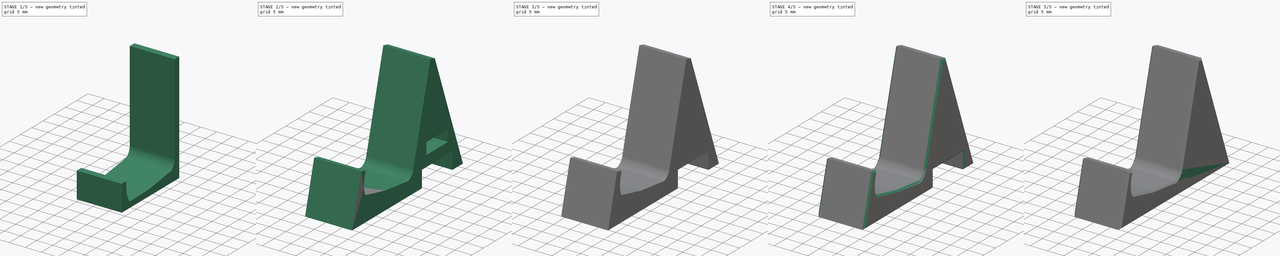
[diagram: build sequence overview — one tinted view per stage of 5, left to right]
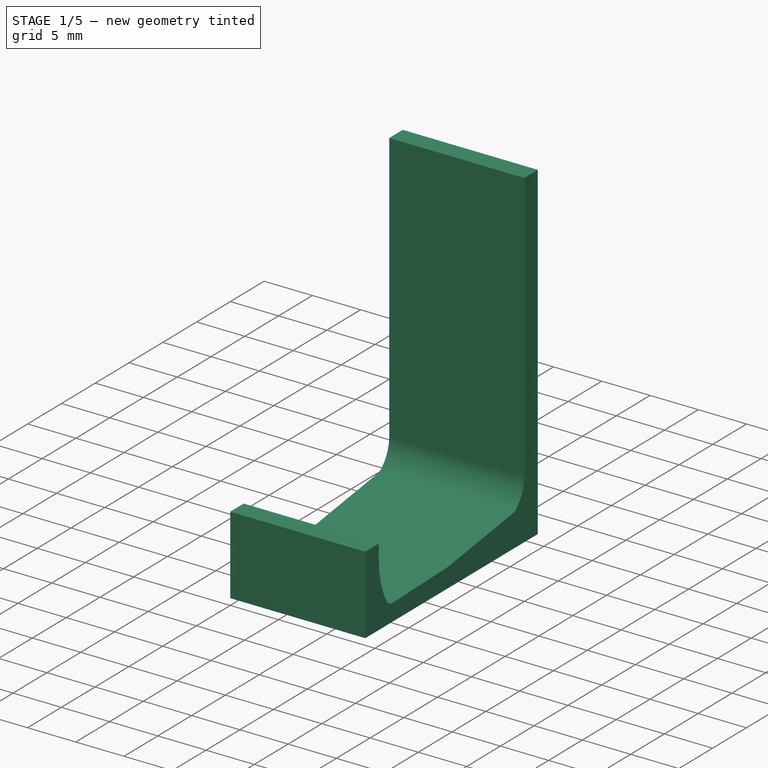
[diagram: stage 1 of 5 — iso view after this stage's code; geometry added in this stage tinted green]
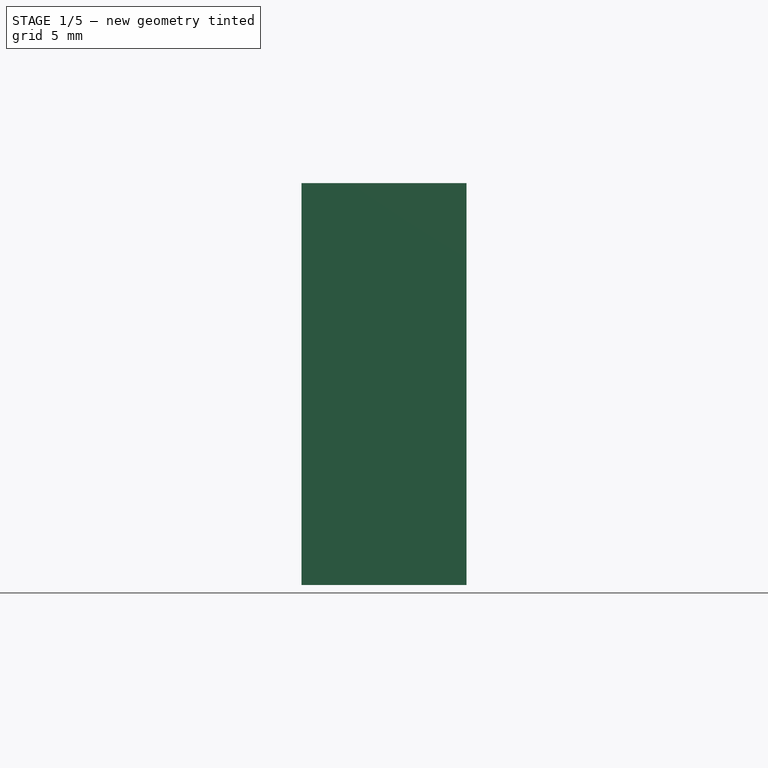
[diagram: stage 1 of 5 — front view after this stage's code; geometry added in this stage tinted green]
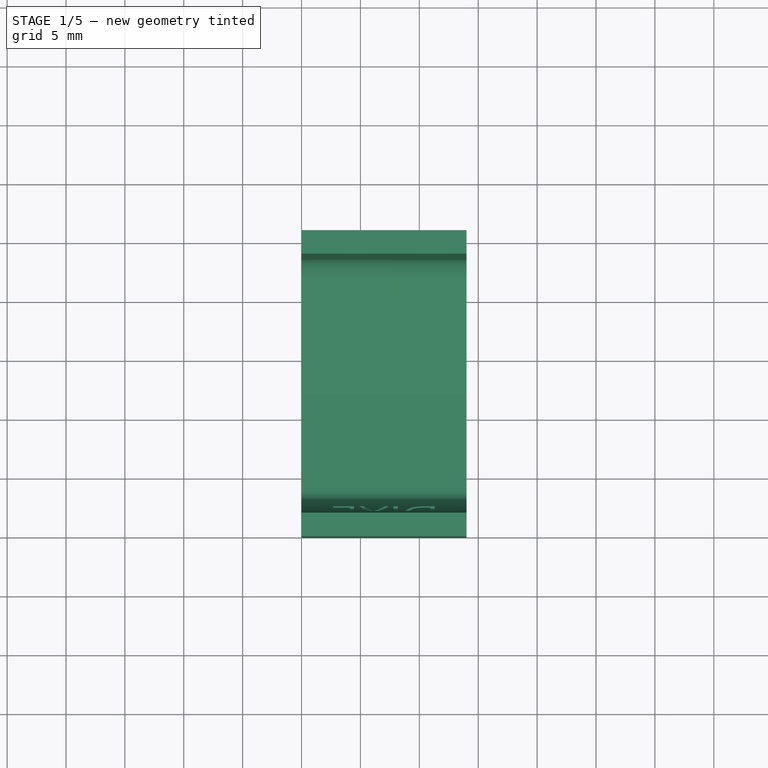
[diagram: stage 1 of 5 — top view after this stage's code; geometry added in this stage tinted green]
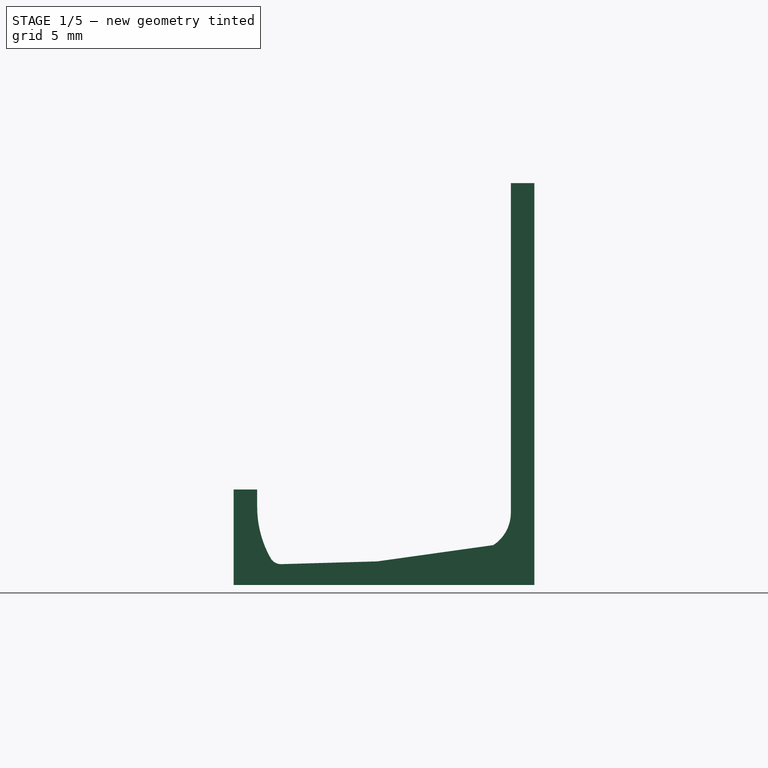
[diagram: stage 1 of 5 — right view after this stage's code; geometry added in this stage tinted green]
FCSTD DOCUMENT  (FreeCAD 1.0R39285 (Git))
Label: DSi XL Kit
License: All rights reserved
LicenseURL: http://en.wikipedia.org/wiki/All_rights_reserved
objects: Sketcher::SketchObject×9, PartDesign::Pocket×8, PartDesign::Pad×6, PartDesign::Body×4, Part::Part2DObjectPython×3, PartDesign::FeatureBase×3, PartDesign::Chamfer×3, PartDesign::Fillet×1, App::Part×1
note: 85 computed .brp shape members not serialized (recipe doc carries the construction recipe); baked Part::Feature solids carry a one-line shape summary decoded from their .brp

FEATURE [Sketcher::SketchObject] Sketch
  ArcFitTolerance = 0
  AttachmentSupport = -> [YZ_Plane]
  FullyConstrained = true
  MakeInternals = false
  MapMode = 5
  Placement = pos=(0,0,0) rot=(0.57735,0.57735,0.57735;2.0944rad)
  sketch-geometry (20):
    g0: LineSegment StartX=0 StartY=0 StartZ=0 EndX=0 EndY=8.1 EndZ=0
    g1: LineSegment StartX=0 StartY=8.1 StartZ=0 EndX=2 EndY=8.1 EndZ=0
    g2: LineSegment StartX=23.536 StartY=34.12 StartZ=0 EndX=25.536 EndY=34.12 EndZ=0
    g3: LineSegment StartX=25.536 StartY=34.12 StartZ=0 EndX=25.536 EndY=0 EndZ=0
    g4: LineSegment StartX=25.536 StartY=0 StartZ=0 EndX=0 EndY=0 EndZ=0
    g5: LineSegment [constr] StartX=2 StartY=8.1 StartZ=0 EndX=2 EndY=2 EndZ=0
    g6: LineSegment [constr] StartX=23.536 StartY=34.12 StartZ=0 EndX=23.536 EndY=2 EndZ=0
    g7: LineSegment [constr] StartX=2 StartY=2 StartZ=0 EndX=2 EndY=0 EndZ=0
    g8: LineSegment [constr] StartX=2 StartY=2 StartZ=0 EndX=12.2 EndY=2 EndZ=0
    g9: LineSegment [constr] StartX=12.2 StartY=2 StartZ=0 EndX=23.536 EndY=2 EndZ=0
    g10: LineSegment StartX=2 StartY=8.1 StartZ=0 EndX=2 EndY=6.6 EndZ=0
    g11: ArcOfCircle CenterX=10.754 CenterY=6.6 CenterZ=0 NormalX=0 NormalY=0 NormalZ=1 AngleXU=0 Radius=8.75402 StartAngle=3.14159 EndAngle=3.72893
    g12: LineSegment [constr] StartX=3.467 StartY=1.749 StartZ=0 EndX=2 EndY=1.749 EndZ=0
    g13: LineSegment [constr] StartX=3.467 StartY=1.749 StartZ=0 EndX=3.467 EndY=2 EndZ=0
    g14: LineSegment StartX=3.467 StartY=1.749 StartZ=0 EndX=12.2 EndY=2 EndZ=0
    g15: LineSegment [constr] StartX=22.041 StartY=2 StartZ=0 EndX=22.041 EndY=3.38 EndZ=0
    g16: LineSegment [constr] StartX=22.041 StartY=3.38 StartZ=0 EndX=23.536 EndY=3.38 EndZ=0
    g17: LineSegment StartX=12.2 StartY=2 StartZ=0 EndX=22.041 EndY=3.38 EndZ=0
    g18: ArcOfCircle CenterX=20.269 CenterY=6.12469 CenterZ=0 NormalX=0 NormalY=0 NormalZ=1 AngleXU=0 Radius=3.267 StartAngle=5.28567 EndAngle=6.28318
    g19: LineSegment StartX=23.536 StartY=6.12468 StartZ=0 EndX=23.536 EndY=34.12 EndZ=0
  constraints (59):
    c: Coincident(g-1,g0)
    c: PointOnObject(g0,g-2)
    c: Coincident(g0,g1)
    c: Horizontal(g1)
    c: Horizontal(g2)
    c: Coincident(g2,g3)
    c: PointOnObject(g3,g-1)
    c: Vertical(g3)
    c: Coincident(g3,g4)
    c: Coincident(g4,g0)
    c: Equal(g2,g1)
    c: Distance(g1) = 2
    c: Coincident(g5,g1)
    c: Vertical(g5)
    c: Distance(g5) = 6.1
    c: Coincident(g6,g2)
    c: Vertical(g6)
    c: Distance(g6) = 32.12
    c: Coincident(g7,g5)
    c: PointOnObject(g7,g4)
    c: Vertical(g7)
    c: Equal(g1,g7)
    c: Coincident(g8,g5)
    c: Horizontal(g8)
    c: Coincident(g9,g8)
    c: Coincident(g9,g6)
    c: Horizontal(g9)
    c: Distance(g8) = 10.2
    c: Distance(g9) = 11.336
    c: Coincident(g10,g1)
    c: PointOnObject(g10,g5)
    c: Distance(g10) = 1.5
    c: Coincident(g11,g10)
    c: Tangent(g11,g5)
    c: Coincident(g12,g11)
    c: PointOnObject(g12,g5)
    c: Horizontal(g12)
    c: Distance(g12) = 1.467
    c: Coincident(g13,g11)
    c: PointOnObject(g13,g8)
    c: Vertical(g13)
    c: Distance(g13) = 0.251
    c: Coincident(g14,g11)
    c: Coincident(g14,g8)
    c: PointOnObject(g15,g9)
    c: Vertical(g15)
    c: Coincident(g16,g15)
    c: PointOnObject(g16,g6)
    c: Horizontal(g16)
    c: Distance(g16) = 1.495
    c: Distance(g15) = 1.38
    c: Coincident(g17,g14)
    c: Coincident(g17,g15)
    c: Coincident(g18,g17)
    c: PointOnObject(g18,g6)
    c: Tangent(g18,g6)
    c: Radius(g18) = 3.267
    c: Coincident(g19,g18)
    c: Coincident(g19,g2)
FEATURE [PartDesign::Pad] Pad
  Direction = (1,0,0)
  Length = 14
  Length2 = 10
  Placement = pos=(0,0,0) rot=(1,1,1;2.0944rad)
  Profile = -> Sketch
  ReferenceAxis = -> Sketch [N_Axis]
  Refine = true
  Suppressed = false
  Type = 0
FEATURE [Part::Part2DObjectPython] ShapeString  # Draft 2D object (typed FeaturePython)
  FontFile = <path> Bit Git Repro/16BitVirtualStudiosDesigns/Font/OpenSans-Regular.ttf
  Fuse = false
  Justification = 6
  JustificationReference = 0
  KeepLeftMargin = true
  MakeFace = true
  ObliqueAngle = 0
  Placement = pos=(11.735,6,3.35) rot=(0,0.707107,0.707107;3.14159rad)
  ScaleToSize = false
  Size = 4
  String = DiXL
  Tracking = 0
FEATURE [PartDesign::Pocket] Pocket
  BaseFeature = -> Pad
  Direction = (-1e-16,-1,2e-16)
  Length = 0
  Length2 = 5
  Offset = 0.2
  Placement = pos=(0,0,0) rot=(1,1,1;2.0944rad)
  Profile = -> ShapeString
  ReferenceAxis = -> ShapeString [N_Axis]
  Suppressed = false
  Type = 3
  UpToFace = -> Pad [Face3]
FEATURE [Sketcher::SketchObject] Sketch001
  ArcFitTolerance = 0
  AttachmentSupport = -> [Pocket]
  ExternalGeometry = -> [Pocket]
  FullyConstrained = true
  MakeInternals = false
  MapMode = 5
  Placement = pos=(14,-6.2e-15,3.1e-15) rot=(0.57735,0.57735,0.57735;2.0944rad)
  sketch-geometry (7):
    g0: ArcOfCircle [constr] CenterX=10.754 CenterY=6.6 CenterZ=0 NormalX=0 NormalY=0 NormalZ=1 AngleXU=0 Radius=8.75402 StartAngle=3.14159 EndAngle=3.72893
    g1: ArcOfCircle CenterX=10.754 CenterY=6.6 CenterZ=0 NormalX=0 NormalY=0 NormalZ=1 AngleXU=0 Radius=8.95402 StartAngle=3.14159 EndAngle=3.72893
    g2: LineSegment [constr] StartX=2 StartY=6.6 StartZ=0 EndX=1.8 EndY=6.6 EndZ=0
    g3: LineSegment [constr] StartX=3.467 StartY=1.749 StartZ=0 EndX=3.30052 EndY=1.63817 EndZ=0
    g4: ArcOfCircle CenterX=10.754 CenterY=6.6 CenterZ=0 NormalX=0 NormalY=0 NormalZ=1 AngleXU=0 Radius=9.95402 StartAngle=3.14159 EndAngle=3.72893
    g5: LineSegment StartX=0.8 StartY=6.6 StartZ=0 EndX=1.8 EndY=6.6 EndZ=0
    g6: LineSegment StartX=2.4681 StartY=1.08403 StartZ=0 EndX=3.30052 EndY=1.63817 EndZ=0
  constraints (19):
    c: Coincident(g0,g-3)
    c: Coincident(g0,g-3)
    c: Equal(g0,g-3)
    c: Coincident(g2,g0)
    c: Coincident(g2,g1)
    c: Coincident(g3,g0)
    c: Coincident(g3,g1)
    c: Perpendicular(g0,g2)
    c: Perpendicular(g0,g3)
    c: Coincident(g0,g1)
    c: Distance(g2) = 0.2
    c: Coincident(g4,g1)
    c: Coincident(g5,g4)
    c: Coincident(g5,g1)
    c: Coincident(g6,g4)
    c: Coincident(g6,g1)
    c: Perpendicular(g1,g5)
    c: Perpendicular(g1,g6)
    c: Distance(g5) = 1
FEATURE [PartDesign::Pad] Pad001
  BaseFeature = -> Pocket
  Direction = (1,0,0)
  Length = 14
  Length2 = 10
  Placement = pos=(0,0,0) rot=(1,1,1;2.0944rad)
  Profile = -> Sketch001
  ReferenceAxis = -> Sketch001 [N_Axis]
  Refine = true
  Reversed = true
  Suppressed = false
  Type = 0
FEATURE [Sketcher::SketchObject] Sketch002  label="DSi Icon"
  ArcFitTolerance = 0
  FullyConstrained = false
  MakeInternals = false
  Placement = pos=(1.815,37.84,-11) rot=(0,1,0;3.14159rad)
  sketch-geometry (9):
    g0: BSplineCurve PolesCount=7 KnotsCount=4 Degree=2 IsPeriodic=0
    g1: BSplineCurve PolesCount=2 KnotsCount=2 Degree=1 IsPeriodic=0
    g2: BSplineCurve PolesCount=3 KnotsCount=2 Degree=2 IsPeriodic=0
    g3: BSplineCurve PolesCount=2 KnotsCount=2 Degree=1 IsPeriodic=0
    g4: BSplineCurve PolesCount=3 KnotsCount=2 Degree=2 IsPeriodic=0
    g5: BSplineCurve PolesCount=2 KnotsCount=2 Degree=1 IsPeriodic=0
    g6: BSplineCurve PolesCount=3 KnotsCount=2 Degree=2 IsPeriodic=0
    g7: BSplineCurve PolesCount=2 KnotsCount=2 Degree=1 IsPeriodic=0
    g8: BSplineCurve PolesCount=3 KnotsCount=2 Degree=2 IsPeriodic=0
  constraints (8):
    c: Coincident(g1,g2)
    c: Coincident(g2,g3)
    c: Coincident(g3,g4)
    c: Coincident(g4,g5)
    c: Coincident(g5,g6)
    c: Coincident(g6,g7)
    c: Coincident(g7,g8)
    c: Coincident(g8,g1)
FEATURE [Part::Part2DObjectPython] ShapeString001  label="L"  # Draft 2D object (typed FeaturePython)
  FontFile = <path> Bit Git Repro/16BitVirtualStudiosDesigns/Font/OpenSans-Regular.ttf
  Fuse = false
  Justification = 6
  JustificationReference = 0
  KeepLeftMargin = true
  MakeFace = true
  ObliqueAngle = 0
  Placement = pos=(3.72,8.1,-16) rot=(1,0,0;3.14159rad)
  ScaleToSize = false
  Size = 10
  String = L
  Tracking = 0
FEATURE [Part::Part2DObjectPython] ShapeString002  label="R"  # Draft 2D object (typed FeaturePython)
  FontFile = <path> Bit Git Repro/16BitVirtualStudiosDesigns/Font/OpenSans-Regular.ttf
  Fuse = false
  Justification = 6
  JustificationReference = 0
  KeepLeftMargin = true
  MakeFace = true
  ObliqueAngle = 0
  Placement = pos=(3.15,8.1,-16) rot=(1,0,0;3.14159rad)
  ScaleToSize = false
  Size = 10
  String = R
  Tracking = 0
FEATURE [Sketcher::SketchObject] Sketch003  label="DSi Icon001"
  ArcFitTolerance = 0
  FullyConstrained = false
  MakeInternals = false
  Placement = pos=(1.815,20.38,-12) rot=(0,1,0;3.14159rad)
  sketch-geometry (9):
    g0: BSplineCurve PolesCount=7 KnotsCount=4 Degree=2 IsPeriodic=0
    g1: BSplineCurve PolesCount=2 KnotsCount=2 Degree=1 IsPeriodic=0
    g2: BSplineCurve PolesCount=3 KnotsCount=2 Degree=2 IsPeriodic=0
    g3: BSplineCurve PolesCount=2 KnotsCount=2 Degree=1 IsPeriodic=0
    g4: BSplineCurve PolesCount=3 KnotsCount=2 Degree=2 IsPeriodic=0
    g5: BSplineCurve PolesCount=2 KnotsCount=2 Degree=1 IsPeriodic=0
    g6: BSplineCurve PolesCount=3 KnotsCount=2 Degree=2 IsPeriodic=0
    g7: BSplineCurve PolesCount=2 KnotsCount=2 Degree=1 IsPeriodic=0
    g8: BSplineCurve PolesCount=3 KnotsCount=2 Degree=2 IsPeriodic=0
  constraints (8):
    c: Coincident(g1,g2)
    c: Coincident(g2,g3)
    c: Coincident(g3,g4)
    c: Coincident(g4,g5)
    c: Coincident(g5,g6)
    c: Coincident(g6,g7)
    c: Coincident(g7,g8)
    c: Coincident(g8,g1)
FEATURE [PartDesign::Fillet] Fillet
  Base = -> Pad001 [Edge22]
  BaseFeature = -> Pad001
  Placement = pos=(0,0,0) rot=(1,1,1;2.0944rad)
  Radius = 1
  SupportTransform = false
  Suppressed = false
  UseAllEdges = false
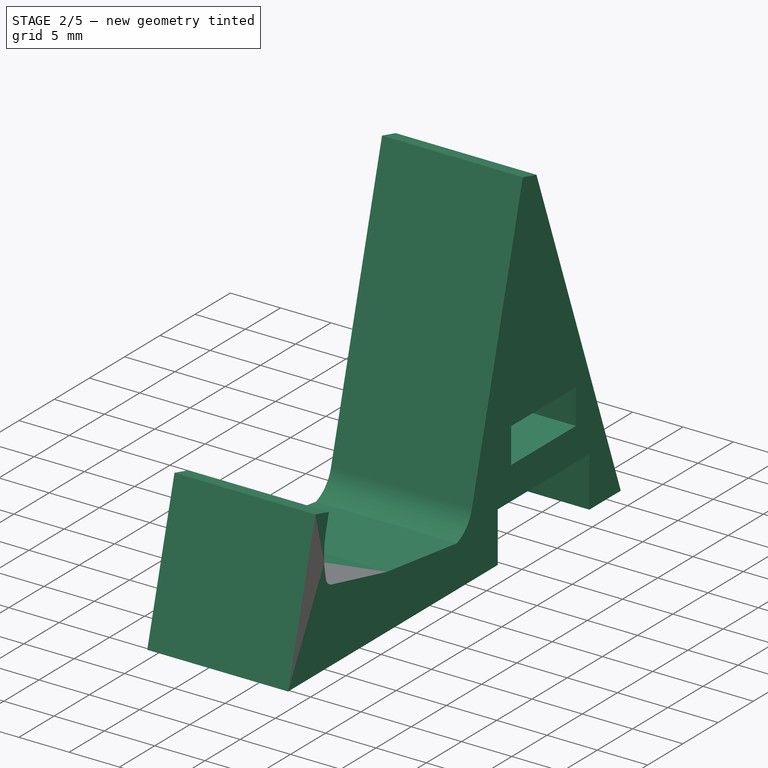
[diagram: stage 2 of 5 — iso view after this stage's code; geometry added in this stage tinted green]
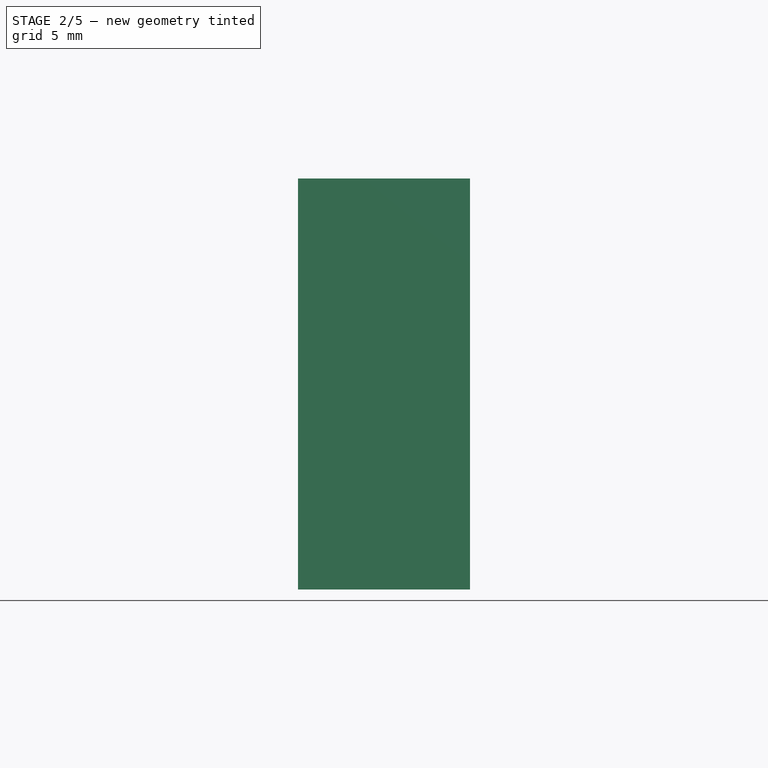
[diagram: stage 2 of 5 — front view after this stage's code; geometry added in this stage tinted green]
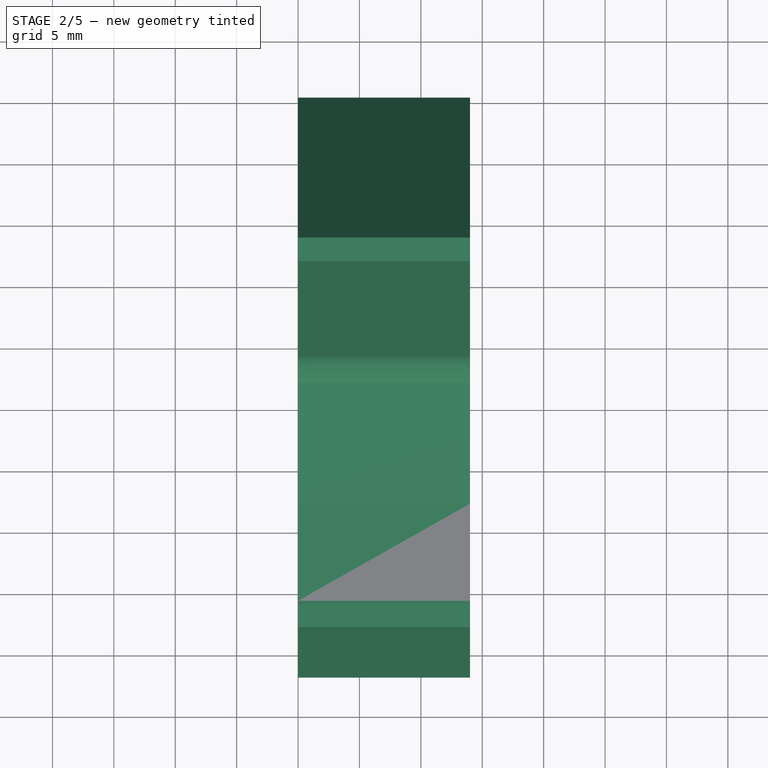
[diagram: stage 2 of 5 — top view after this stage's code; geometry added in this stage tinted green]
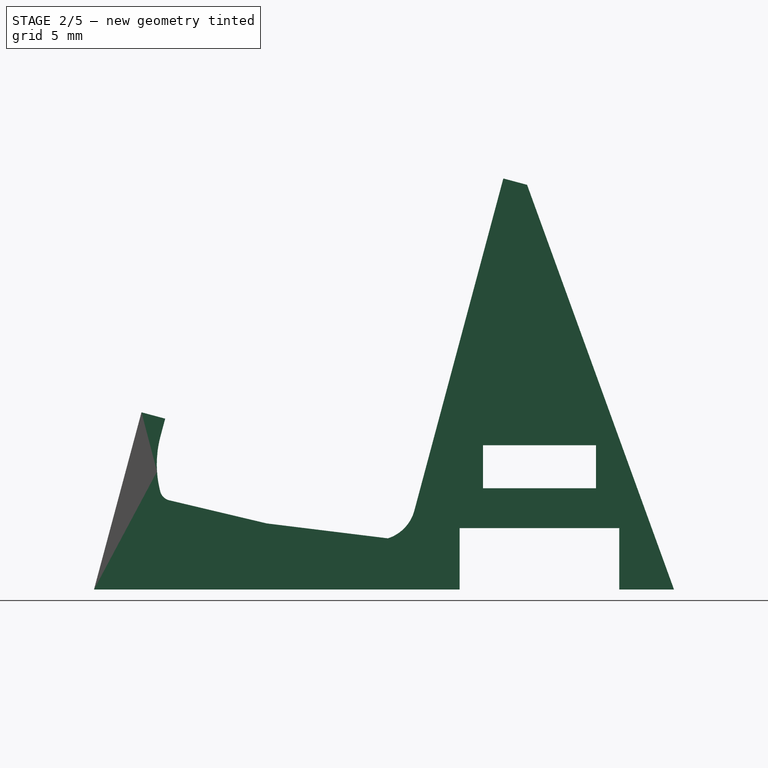
[diagram: stage 2 of 5 — right view after this stage's code; geometry added in this stage tinted green]
FEATURE [PartDesign::Body] Body  label="Profile"
  AllowCompound = false
  Group = -> [Sketch,Pad,ShapeString,Pocket,Sketch001,Pad001,Fillet]
  Origin = -> Origin
  Tip = -> Fillet
FEATURE [PartDesign::FeatureBase] Clone
  BaseFeature = -> Body
  Placement = pos=(0,0,0) rot=(-1,0,0;0.261799rad)
  Suppressed = false
FEATURE [Sketcher::SketchObject] Sketch005
  ArcFitTolerance = 0
  AttachmentSupport = -> [Clone]
  ExternalGeometry = -> [Clone]
  FullyConstrained = true
  MakeInternals = false
  MapMode = 5
  Placement = pos=(14,3.6e-15,1.34e-14) rot=(0.519988,0.677661,0.519988;1.95044rad)
  sketch-geometry (19):
    g0: LineSegment StartX=25.536 StartY=34.12 StartZ=0 EndX=25.536 EndY=1.76557 EndZ=0
    g1: LineSegment StartX=25.536 StartY=1.76557 StartZ=0 EndX=-1.07e-14 EndY=1.76557 EndZ=0
    g2: LineSegment StartX=-1.01e-14 StartY=1.76557 StartZ=0 EndX=0 EndY=-6.84235 EndZ=0
    g3: LineSegment StartX=0 StartY=-6.84235 StartZ=0 EndX=28.7619 EndY=0.86439 EndZ=0
    g4: LineSegment StartX=28.7619 StartY=0.86439 StartZ=0 EndX=27.4679 EndY=5.69402 EndZ=0
    g5: LineSegment StartX=27.4679 StartY=5.69402 StartZ=0 EndX=40.0249 EndY=9.05867 EndZ=0
    g6: LineSegment StartX=40.0249 StartY=9.05867 StartZ=0 EndX=41.319 EndY=4.22904 EndZ=0
    g7: LineSegment StartX=41.319 StartY=4.22904 StartZ=0 EndX=45.6247 EndY=5.38276 EndZ=0
    g8: LineSegment StartX=45.6247 StartY=5.38276 StartZ=0 EndX=25.536 EndY=34.12 EndZ=0
    g9: LineSegment StartX=28.4619 StartY=9.32503 StartZ=0 EndX=37.3485 EndY=11.7062 EndZ=0
    g10: LineSegment StartX=37.3485 StartY=11.7062 StartZ=0 EndX=36.4426 EndY=15.0869 EndZ=0
    g11: LineSegment StartX=36.4426 StartY=15.0869 StartZ=0 EndX=27.5561 EndY=12.7058 EndZ=0
    g12: LineSegment StartX=27.5561 StartY=12.7058 StartZ=0 EndX=28.4619 EndY=9.32503 EndZ=0
    g13: LineSegment [constr] StartX=32.9052 StartY=10.5156 StartZ=0 EndX=33.7464 EndY=7.37634 EndZ=0
    g14: LineSegment [constr] StartX=40.0249 StartY=9.05867 StartZ=0 EndX=42.5771 EndY=9.74252 EndZ=0
    g15: LineSegment [constr] StartX=27.4679 StartY=5.69402 StartZ=0 EndX=25.536 EndY=5.17638 EndZ=0
    g16: LineSegment [constr] StartX=27.5561 StartY=12.7058 StartZ=0 EndX=25.536 EndY=12.1645 EndZ=0
    g17: LineSegment [constr] StartX=36.4426 StartY=15.0869 StartZ=0 EndX=38.4627 EndY=15.6282 EndZ=0
    g18: LineSegment [constr] StartX=28.7619 StartY=0.86439 StartZ=0 EndX=41.319 EndY=4.22904 EndZ=0
  constraints (54):
    c: Vertical(g0)
    c: Coincident(g0,g1)
    c: Horizontal(g1)
    c: Coincident(g1,g2)
    c: PointOnObject(g2,g-2)
    c: Coincident(g2,g3)
    c: Coincident(g3,g4)
    c: Coincident(g4,g5)
    c: Coincident(g5,g6)
    c: Coincident(g6,g7)
    c: Coincident(g7,g8)
    c: Coincident(g8,g0)
    c: Coincident(g9,g10)
    c: Coincident(g10,g11)
    c: Coincident(g11,g12)
    c: Coincident(g12,g9)
    c: Coincident(g14,g5)
    c: PointOnObject(g14,g8)
    c: Coincident(g15,g4)
    c: PointOnObject(g15,g0)
    c: Coincident(g16,g11)
    c: PointOnObject(g16,g0)
    c: Coincident(g17,g10)
    c: PointOnObject(g17,g8)
    c: Symmetric(g4,g5,g13)
    c: Symmetric(g9,g9,g13)
    c: Coincident(g18,g3)
    c: Coincident(g18,g6)
    c: Parallel(g3,g18)
    c: Parallel(g7,g18)
    c: Parallel(g18,g5)
    c: Parallel(g5,g9)
    c: Parallel(g9,g11)
    c: Parallel(g11,g16)
    c: Parallel(g17,g11)
    c: Parallel(g14,g5)
    c: Parallel(g15,g5)
    c: Perpendicular(g4,g3)
    c: Perpendicular(g7,g6)
    c: Perpendicular(g5,g13)
    c: Perpendicular(g12,g9)
    c: Perpendicular(g10,g9)
    c: Angle(g3,g2) = 1.309
    c: Distance(g6) = 5
    c: Distance(g5) = 13
    c: Distance(g13) = 3.25
    c: Distance(g11) = 9.2
    c: Distance(g10) = 3.5
    c: Equal(g16,g17)
    c: Distance(g15) = 2
    c: PointOnObject(g1,g-5)
    c: PointOnObject(g-3,g3)
    c: Coincident(g-3,g0)
    c: PointOnObject(g-4,g1)
FEATURE [PartDesign::Pad] Pad002
  BaseFeature = -> Clone
  Direction = (1,-1e-16,1e-16)
  Length = 14
  Length2 = 10
  Placement = pos=(0,0,0) rot=(-1,0,0;0.261799rad)
  Profile = -> Sketch005
  ReferenceAxis = -> Sketch005 [N_Axis]
  Refine = true
  Reversed = true
  Suppressed = false
  Type = 0
FEATURE [PartDesign::FeatureBase] Clone001
  BaseFeature = -> Pad002
  Placement = pos=(0,0,0) rot=(-1,0,0;0.261799rad)
  Suppressed = false
FEATURE [PartDesign::Body] Body001  label="Stand"
  AllowCompound = false
  Group = -> [Clone,Sketch002,Sketch005,Pad002,Sketch006,Pad003,Pocket001,Pocket002,Chamfer]
  Origin = -> Origin002
  Placement = pos=(50,0,0) rot=(0,0,1;0rad)
  Tip = -> Chamfer
FEATURE [Sketcher::SketchObject] Sketch007
  ArcFitTolerance = 0
  AttachmentSupport = -> [Clone001]
  FullyConstrained = true
  MakeInternals = false
  MapMode = 5
  Placement = pos=(2e-16,2.1e-15,-1.6092) rot=(1,0,0;3.14159rad)
  sketch-geometry (1):
    g0: Circle CenterX=7 CenterY=-34.5056 CenterZ=0 NormalX=0 NormalY=0 NormalZ=1 AngleXU=0 Radius=2.6
  constraints (2):
    c: Symmetric(g-3,g-4,g0)
    c: Diameter(g0) = 5.2
FEATURE [PartDesign::Pocket] Pocket003
  BaseFeature = -> Clone001
  Direction = (0,-1.3e-15,1)
  Length = 11
  Length2 = 5
  Placement = pos=(0,0,0) rot=(-1,0,0;0.261799rad)
  Profile = -> Sketch007
  ReferenceAxis = -> Sketch007 [N_Axis]
  Suppressed = false
  Type = 0
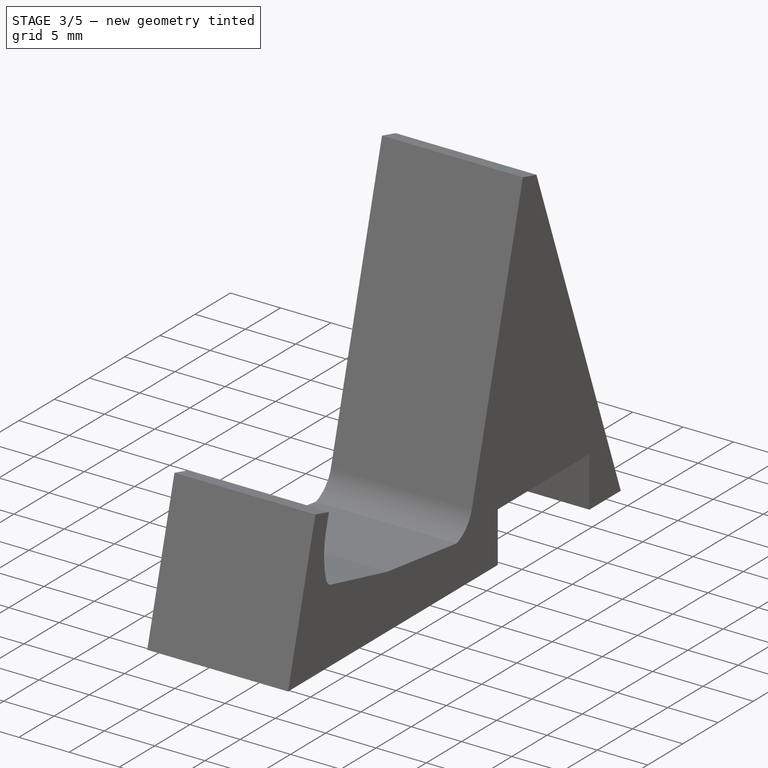
[diagram: stage 3 of 5 — iso view after this stage's code; geometry added in this stage tinted green]
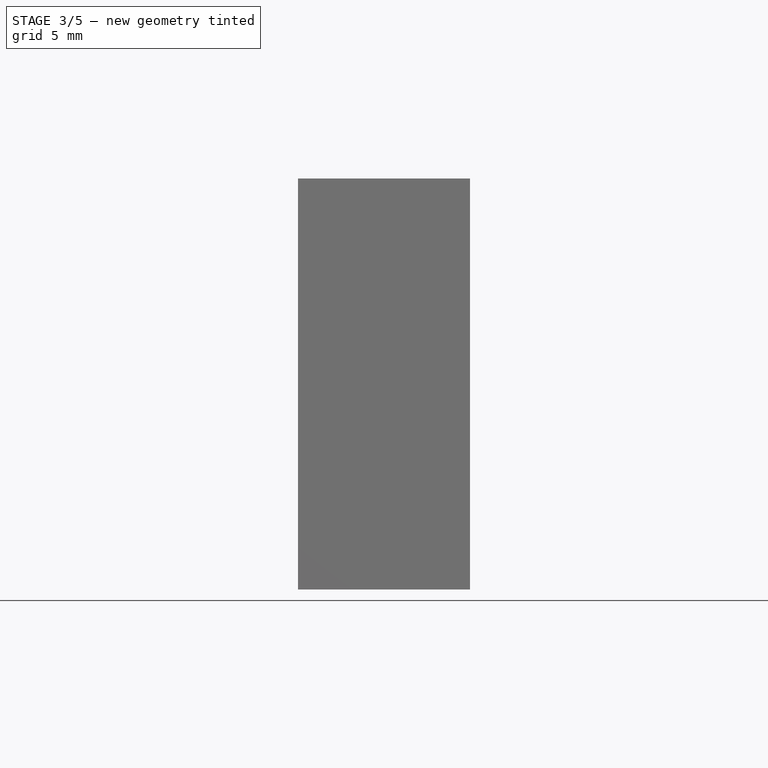
[diagram: stage 3 of 5 — front view after this stage's code; geometry added in this stage tinted green]
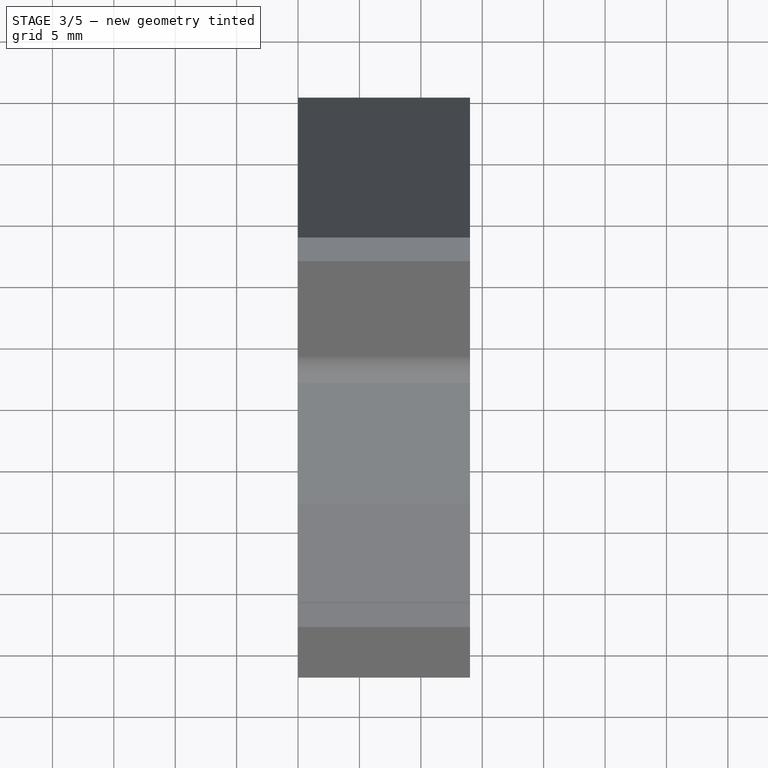
[diagram: stage 3 of 5 — top view after this stage's code; geometry added in this stage tinted green]
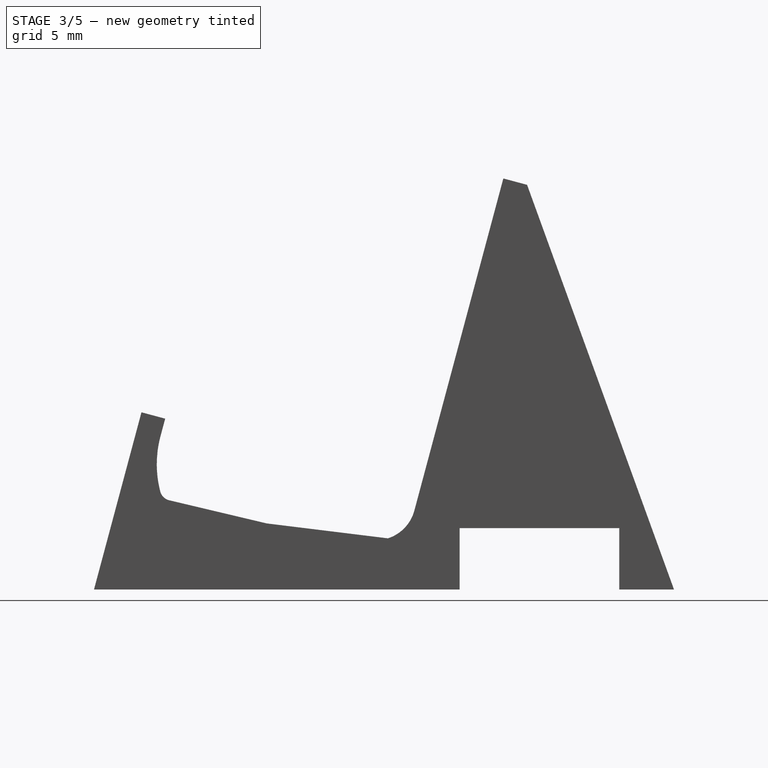
[diagram: stage 3 of 5 — right view after this stage's code; geometry added in this stage tinted green]
FEATURE [PartDesign::Pocket] Pocket004
  BaseFeature = -> Pocket003
  Direction = (-1e-16,0,1)
  Length = 0
  Length2 = 5
  Offset = 0.5
  Placement = pos=(0,0,0) rot=(-1,0,0;0.261799rad)
  Profile = -> Sketch003
  ReferenceAxis = -> Sketch003 [N_Axis]
  Suppressed = false
  Type = 3
  UpToFace = -> Pocket003 [Face45]
FEATURE [PartDesign::Pocket] Pocket005
  BaseFeature = -> Pocket004
  Direction = (-2e-16,-1.1e-15,1)
  Length = 1
  Length2 = 5
  Placement = pos=(0,0,0) rot=(-1,0,0;0.261799rad)
  Profile = -> Pocket004 [Face70]
  Suppressed = false
  Type = 0
FEATURE [PartDesign::FeatureBase] Clone002
  BaseFeature = -> Pocket005
  Placement = pos=(0,0,0) rot=(-1,0,0;0.261799rad)
  Suppressed = false
FEATURE [PartDesign::Body] Body002  label="Kit Left"
  AllowCompound = false
  Group = -> [Clone001,Sketch003,ShapeString001,Sketch007,Pocket003,Pocket004,Pocket005,Sketch008,Pad004,Pocket006,Chamfer001]
  Origin = -> Origin003
  Placement = pos=(100,0,0) rot=(0,0,1;0rad)
  Tip = -> Chamfer001
FEATURE [Sketcher::SketchObject] Sketch009
  ArcFitTolerance = 0
  AttachmentSupport = -> [Clone002]
  ExternalGeometry = -> [Clone002]
  FullyConstrained = true
  MakeInternals = false
  MapMode = 5
  Placement = pos=(14,3.1e-15,1.14e-14) rot=(0.519988,0.677661,0.519988;1.95044rad)
  sketch-geometry (4):
    g0: LineSegment StartX=27.5561 StartY=12.7058 StartZ=0 EndX=36.4426 EndY=15.0869 EndZ=0
    g1: LineSegment StartX=36.4426 StartY=15.0869 StartZ=0 EndX=37.3485 EndY=11.7062 EndZ=0
    g2: LineSegment StartX=37.3485 StartY=11.7062 StartZ=0 EndX=28.4619 EndY=9.32503 EndZ=0
    g3: LineSegment StartX=28.4619 StartY=9.32503 StartZ=0 EndX=27.5561 EndY=12.7058 EndZ=0
  constraints (8):
    c: Coincident(g-3,g0)
    c: Coincident(g0,g-4)
    c: Coincident(g0,g1)
    c: Coincident(g1,g-4)
    c: Coincident(g1,g2)
    c: Coincident(g2,g-3)
    c: Coincident(g2,g3)
    c: Coincident(g3,g0)
FEATURE [PartDesign::Pad] Pad005
  BaseFeature = -> Clone002
  Direction = (1,-1e-16,1e-16)
  Length = 2
  Length2 = 10
  Placement = pos=(0,0,0) rot=(-1,0,0;0.261799rad)
  Profile = -> Sketch009
  ReferenceAxis = -> Sketch009 [N_Axis]
  Refine = true
  Reversed = true
  Suppressed = false
  Type = 0
FEATURE [PartDesign::Pocket] Pocket007
  BaseFeature = -> Pad005
  Direction = (0,1e-16,1)
  Length = 0
  Length2 = 5
  Offset = 0.5
  Placement = pos=(0,0,0) rot=(-1,0,0;0.261799rad)
  Profile = -> ShapeString002
  ReferenceAxis = -> ShapeString002 [N_Axis]
  Suppressed = false
  Type = 3
  UpToFace = -> Pad005 [Face44]
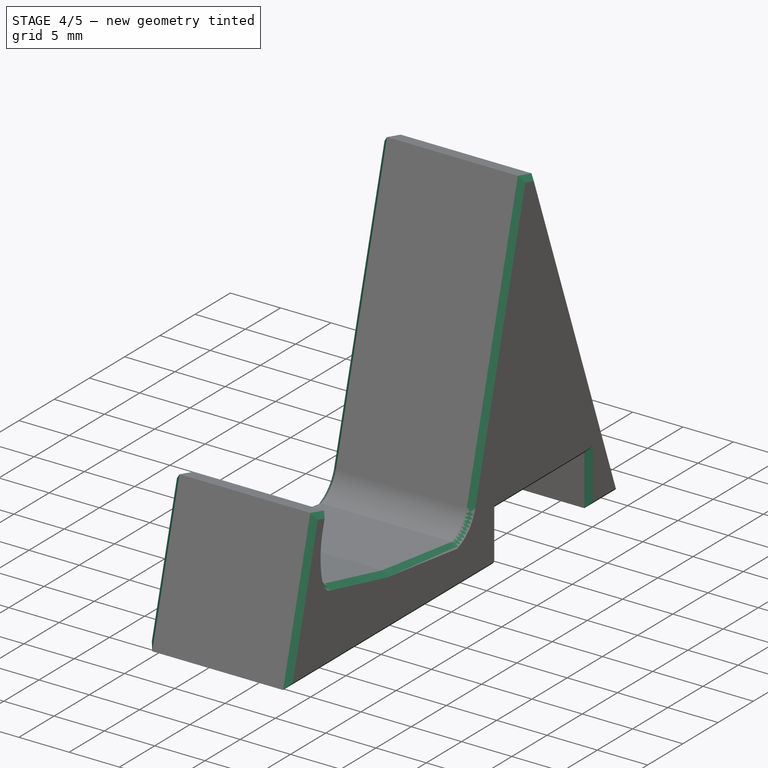
[diagram: stage 4 of 5 — iso view after this stage's code; geometry added in this stage tinted green]
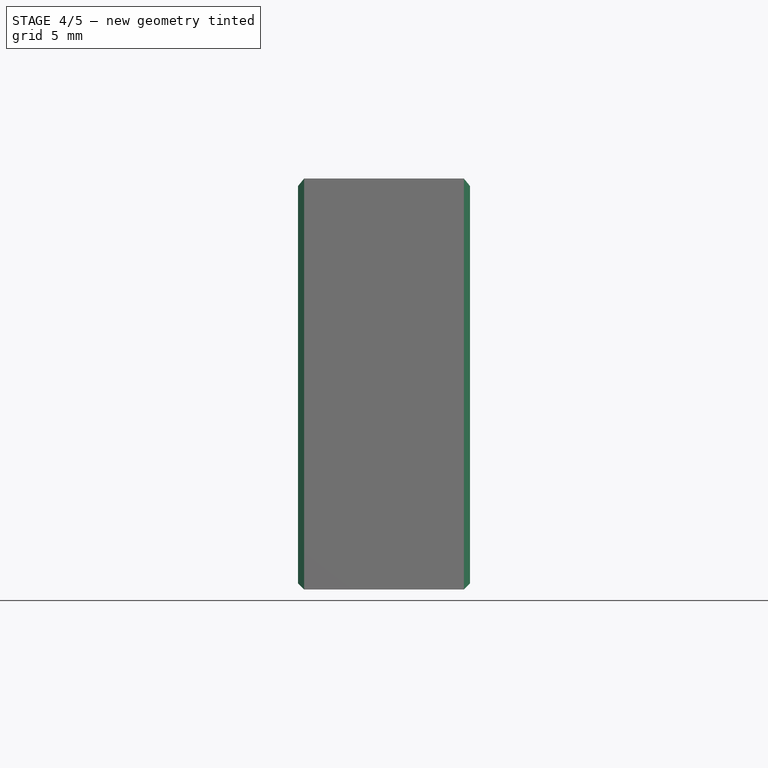
[diagram: stage 4 of 5 — front view after this stage's code; geometry added in this stage tinted green]
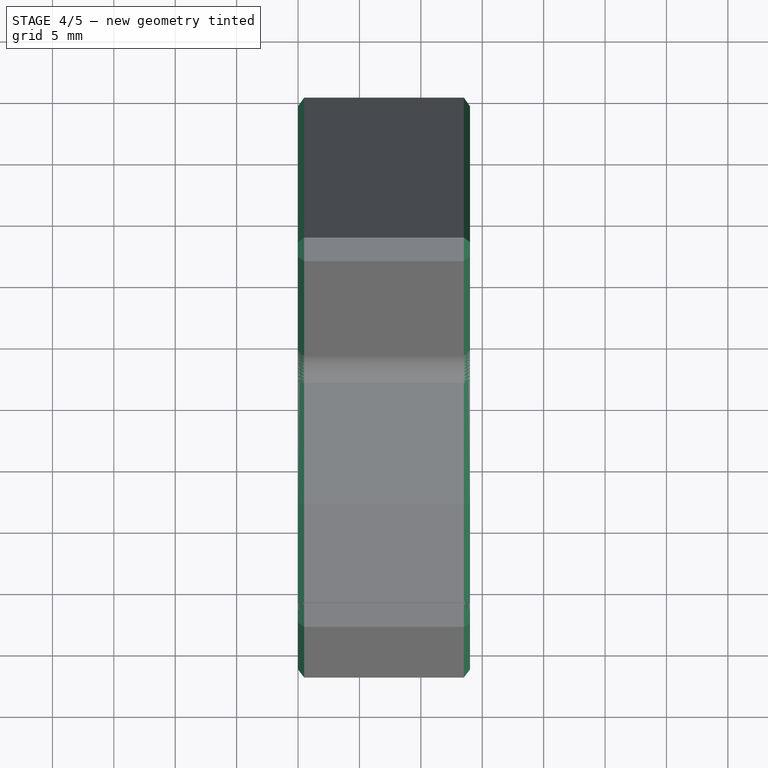
[diagram: stage 4 of 5 — top view after this stage's code; geometry added in this stage tinted green]
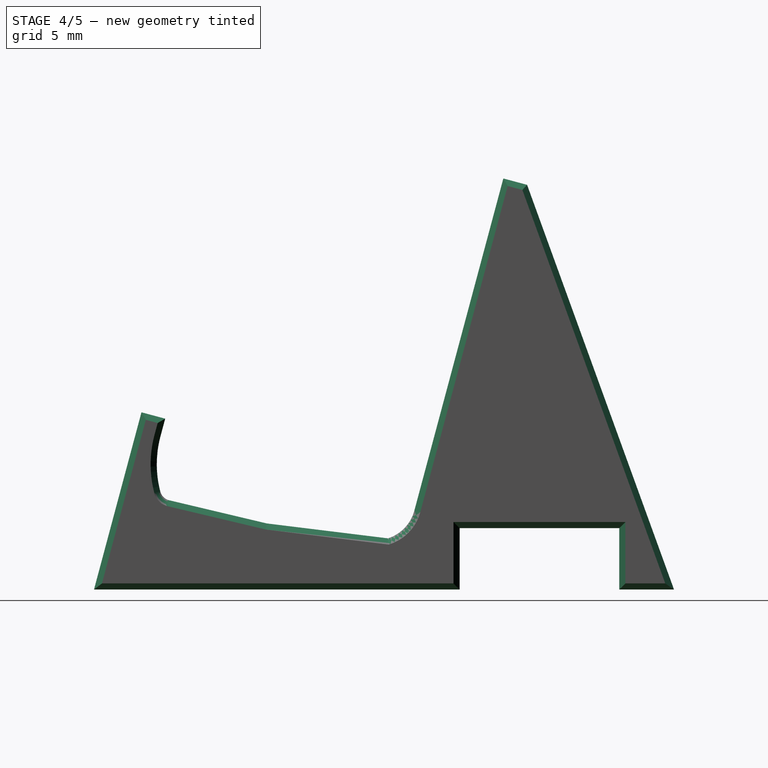
[diagram: stage 4 of 5 — right view after this stage's code; geometry added in this stage tinted green]
FEATURE [Sketcher::SketchObject] Sketch008
  ArcFitTolerance = 0
  AttachmentSupport = -> [Pocket005]
  ExternalGeometry = -> [Pocket005]
  FullyConstrained = true
  MakeInternals = false
  MapMode = 5
  Placement = pos=(-6.3e-15,0,0) rot=(0.519988,-0.677661,-0.519988;1.95044rad)
  sketch-geometry (4):
    g0: LineSegment StartX=-36.4426 StartY=15.0869 StartZ=0 EndX=-37.3485 EndY=11.7062 EndZ=0
    g1: LineSegment StartX=-37.3485 StartY=11.7062 StartZ=0 EndX=-28.4619 EndY=9.32503 EndZ=0
    g2: LineSegment StartX=-28.4619 StartY=9.32503 StartZ=0 EndX=-27.5561 EndY=12.7058 EndZ=0
    g3: LineSegment StartX=-27.5561 StartY=12.7058 StartZ=0 EndX=-36.4426 EndY=15.0869 EndZ=0
  constraints (8):
    c: Coincident(g0,g1)
    c: Coincident(g1,g2)
    c: Coincident(g2,g3)
    c: Coincident(g3,g0)
    c: Coincident(g0,g-3)
    c: Coincident(g1,g-4)
    c: Coincident(g0,g-3)
    c: Coincident(g-4,g2)
FEATURE [PartDesign::Pad] Pad004
  BaseFeature = -> Pocket005
  Direction = (-1,-1e-16,-1.1e-15)
  Length = 2
  Length2 = 10
  Placement = pos=(0,0,0) rot=(-1,0,0;0.261799rad)
  Profile = -> Sketch008
  ReferenceAxis = -> Sketch008 [N_Axis]
  Refine = true
  Reversed = true
  Suppressed = false
  Type = 0
FEATURE [PartDesign::Pocket] Pocket006
  BaseFeature = -> Pad004
  Direction = (0,1e-16,1)
  Length = 0
  Length2 = 5
  Offset = 0.5
  Placement = pos=(0,0,0) rot=(-1,0,0;0.261799rad)
  Profile = -> ShapeString001
  ReferenceAxis = -> ShapeString001 [N_Axis]
  Suppressed = false
  Type = 3
  UpToFace = -> Pad004 [Face44]
FEATURE [PartDesign::Chamfer] Chamfer001
  Angle = 45
  Base = -> Pocket006 [Face2,Face5]
  BaseFeature = -> Pocket006
  ChamferType = 0
  FlipDirection = false
  Placement = pos=(0,0,0) rot=(-1,0,0;0.261799rad)
  Size = 0.5
  Size2 = 1
  SupportTransform = false
  Suppressed = false
  UseAllEdges = false
FEATURE [PartDesign::Chamfer] Chamfer002
  Angle = 45
  Base = -> Pocket007 [Face2,Face5]
  BaseFeature = -> Pocket007
  ChamferType = 0
  FlipDirection = false
  Placement = pos=(0,0,0) rot=(-1,0,0;0.261799rad)
  Size = 0.5
  Size2 = 1
  SupportTransform = false
  Suppressed = false
  UseAllEdges = false
FEATURE [PartDesign::Body] Body003  label="Kit Right"
  AllowCompound = false
  Group = -> [Clone002,ShapeString002,Sketch009,Pad005,Pocket007,Chamfer002]
  Origin = -> Origin004
  Placement = pos=(150,0,0) rot=(0,0,1;0rad)
  Tip = -> Chamfer002
FEATURE [App::Part] Part  label="DSi XL-"
  Group = -> [Body,Body001,Body002,Body003]
  Origin = -> Origin001
note: 3 file-system paths scrubbed to <path> (originals preserved in the JSON sidecar)
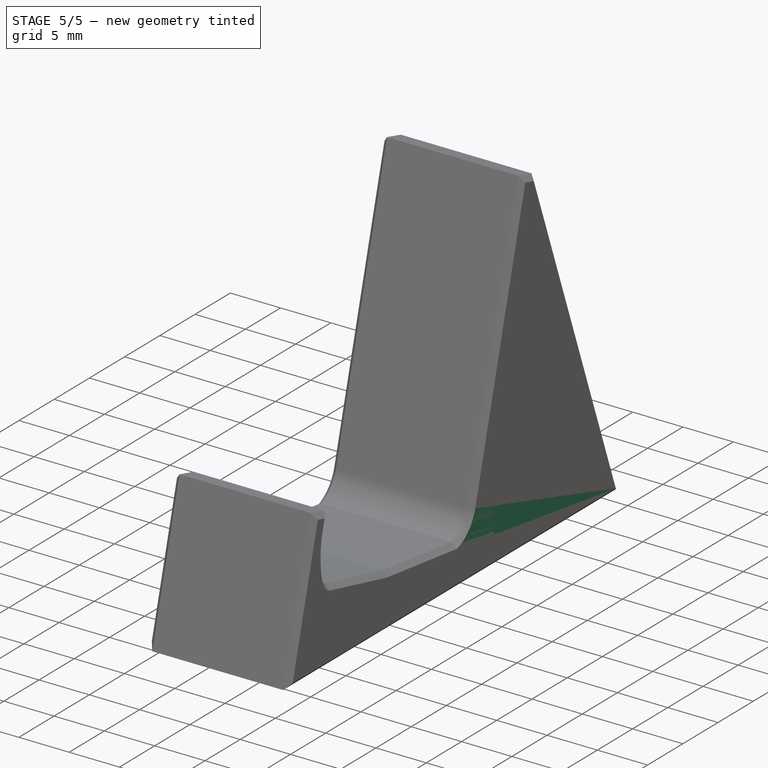
[diagram: stage 5 of 5 — iso view after this stage's code; geometry added in this stage tinted green]
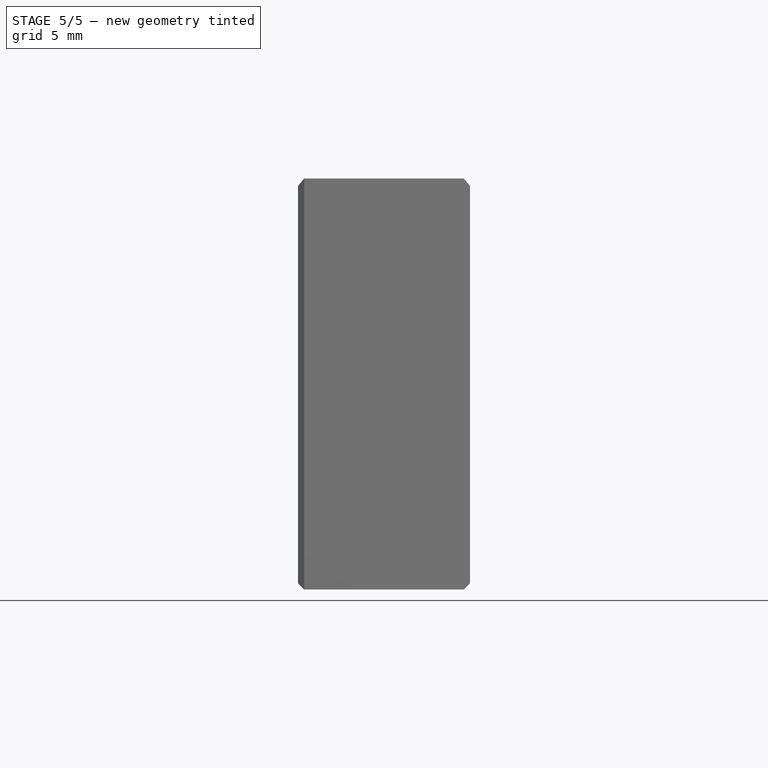
[diagram: stage 5 of 5 — front view after this stage's code; geometry added in this stage tinted green]
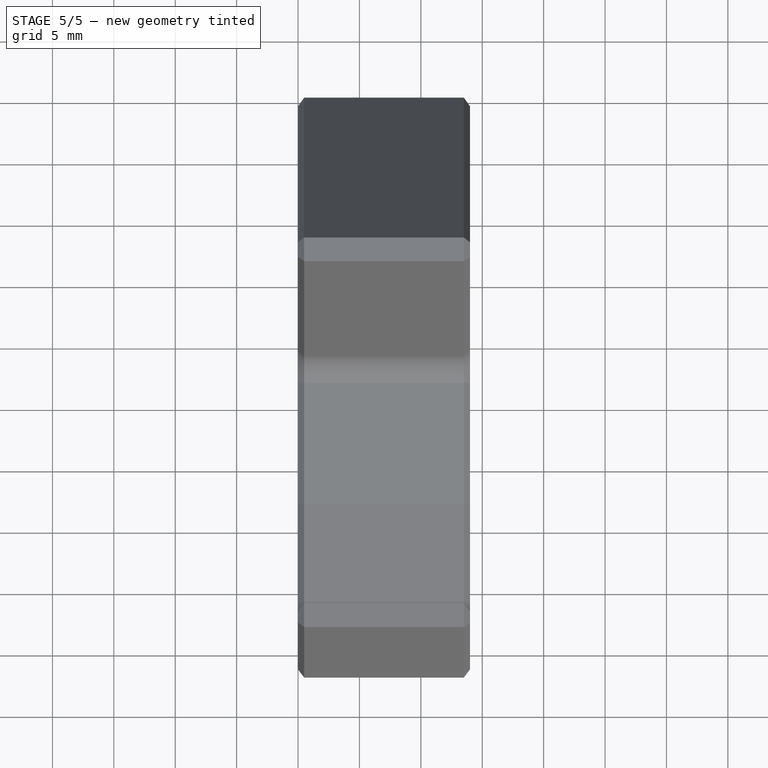
[diagram: stage 5 of 5 — top view after this stage's code; geometry added in this stage tinted green]
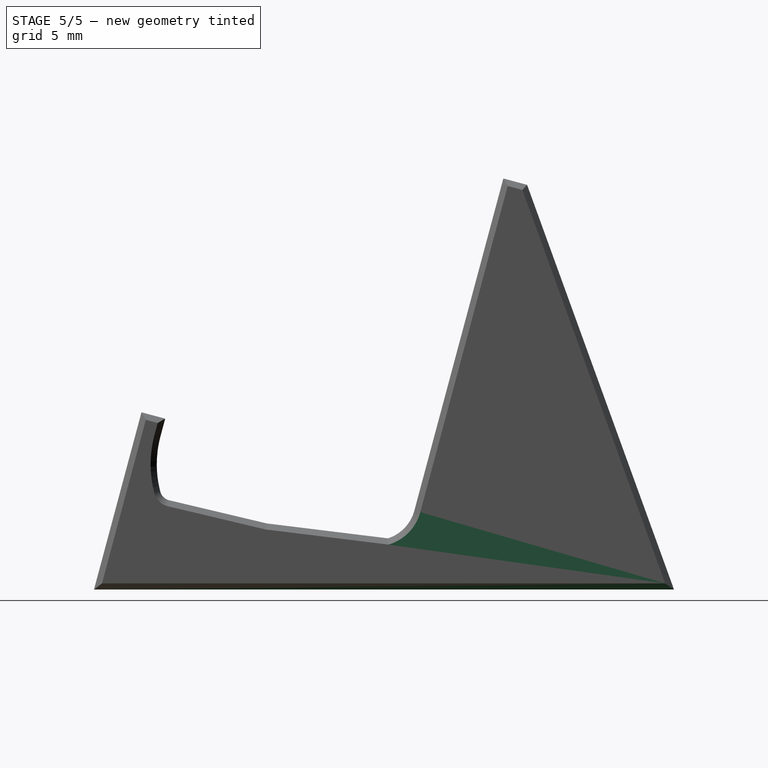
[diagram: stage 5 of 5 — right view after this stage's code; geometry added in this stage tinted green]
FEATURE [Sketcher::SketchObject] Sketch006
  ArcFitTolerance = 0
  AttachmentSupport = -> [Pad002]
  FullyConstrained = true
  MakeInternals = false
  MapMode = 5
  Placement = pos=(14,3.1e-15,1.14e-14) rot=(0.519988,0.677661,0.519988;1.95044rad)
  sketch-geometry (8):
    g0: LineSegment StartX=27.4679 StartY=5.69402 StartZ=0 EndX=40.0249 EndY=9.05867 EndZ=0
    g1: LineSegment StartX=40.0249 StartY=9.05867 StartZ=0 EndX=41.319 EndY=4.22904 EndZ=0
    g2: LineSegment StartX=41.319 StartY=4.22904 StartZ=0 EndX=28.7619 EndY=0.86439 EndZ=0
    g3: LineSegment StartX=28.7619 StartY=0.86439 StartZ=0 EndX=27.4679 EndY=5.69402 EndZ=0
    g4: LineSegment StartX=28.4619 StartY=9.32503 StartZ=0 EndX=37.3485 EndY=11.7062 EndZ=0
    g5: LineSegment StartX=37.3485 StartY=11.7062 StartZ=0 EndX=36.4426 EndY=15.0869 EndZ=0
    g6: LineSegment StartX=36.4426 StartY=15.0869 StartZ=0 EndX=27.5561 EndY=12.7058 EndZ=0
    g7: LineSegment StartX=27.5561 StartY=12.7058 StartZ=0 EndX=28.4619 EndY=9.32503 EndZ=0
  constraints (16):
    c: Coincident(g-6,g0)
    c: Coincident(g0,g-5)
    c: Coincident(g0,g1)
    c: Coincident(g1,g-5)
    c: Coincident(g1,g2)
    c: Coincident(g2,g-6)
    c: Coincident(g2,g3)
    c: Coincident(g3,g0)
    c: Coincident(g-3,g4)
    c: Coincident(g4,g-4)
    c: Coincident(g4,g5)
    c: Coincident(g5,g-4)
    c: Coincident(g5,g6)
    c: Coincident(g6,g-3)
    c: Coincident(g6,g7)
    c: Coincident(g7,g4)
FEATURE [PartDesign::Pad] Pad003
  BaseFeature = -> Pad002
  Direction = (1,-1e-16,1e-16)
  Length = 14
  Length2 = 10
  Placement = pos=(0,0,0) rot=(-1,0,0;0.261799rad)
  Profile = -> Sketch006
  ReferenceAxis = -> Sketch006 [N_Axis]
  Refine = true
  Reversed = true
  Suppressed = false
  Type = 0
FEATURE [PartDesign::Pocket] Pocket001
  BaseFeature = -> Pad003
  Direction = (-1e-16,0,1)
  Length = 0
  Length2 = 5
  Offset = 0.5
  Placement = pos=(0,0,0) rot=(-1,0,0;0.261799rad)
  Profile = -> Sketch002
  ReferenceAxis = -> Sketch002 [N_Axis]
  Suppressed = false
  Type = 3
  UpToFace = -> Pad003 [Face48]
FEATURE [PartDesign::Pocket] Pocket002
  BaseFeature = -> Pocket001
  Direction = (0,-9e-16,1)
  Length = 1
  Length2 = 5
  Placement = pos=(0,0,0) rot=(-1,0,0;0.261799rad)
  Profile = -> Pocket001 [Face59]
  Suppressed = false
  Type = 0
FEATURE [PartDesign::Chamfer] Chamfer
  Angle = 45
  Base = -> Pocket002 [Face4,Face2]
  BaseFeature = -> Pocket002
  ChamferType = 0
  FlipDirection = false
  Placement = pos=(0,0,0) rot=(-1,0,0;0.261799rad)
  Size = 0.5
  Size2 = 1
  SupportTransform = false
  Suppressed = false
  UseAllEdges = false
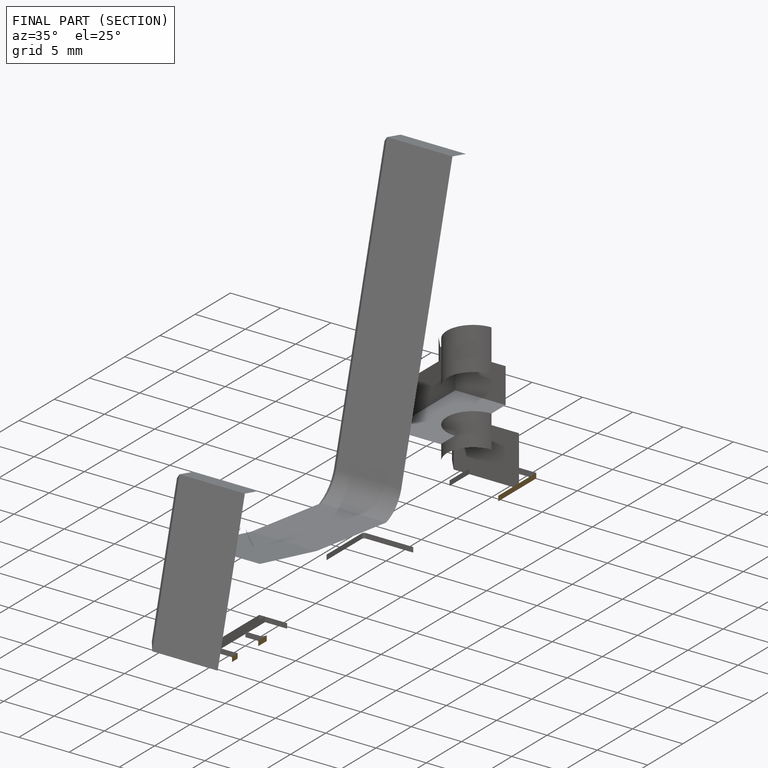
[diagram: finished part — half-section view (interior)]
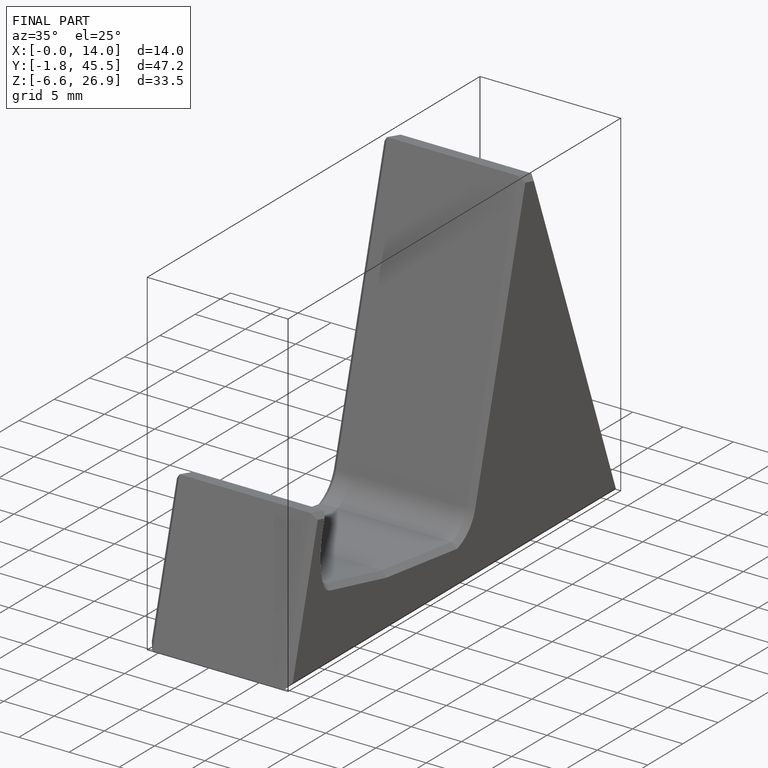
[diagram: finished part — iso view with bounding-box wireframe]
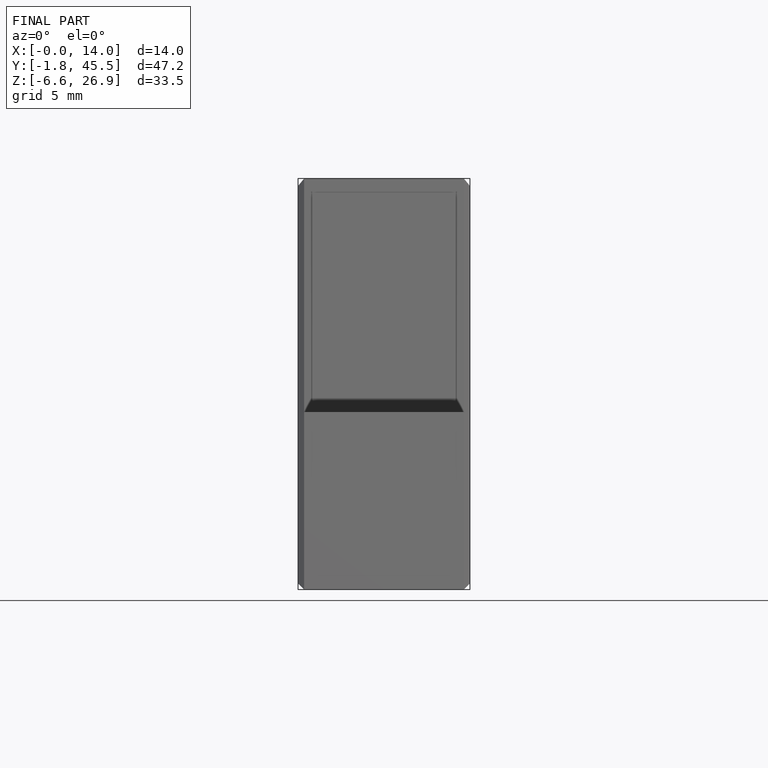
[diagram: finished part — front view with bounding-box wireframe]
